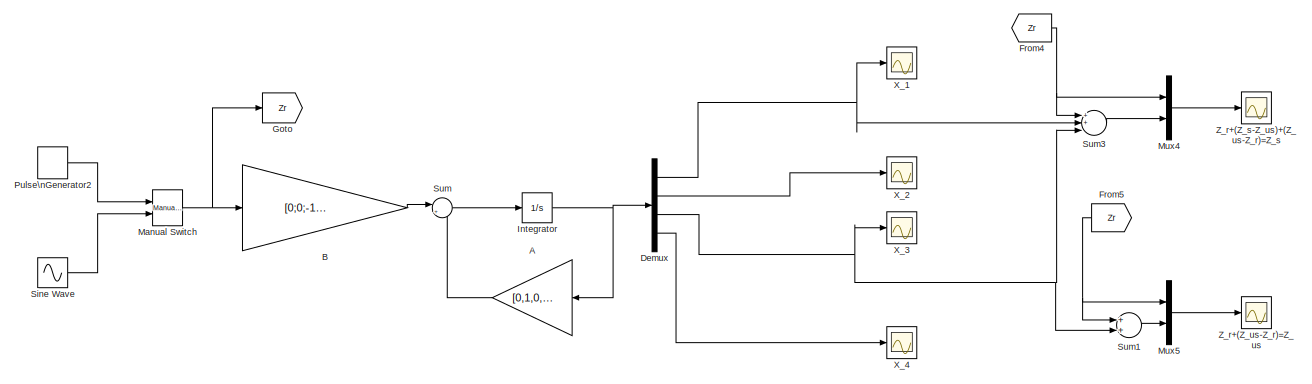
[diagram: root canvas - part 1/2, full width, top band]
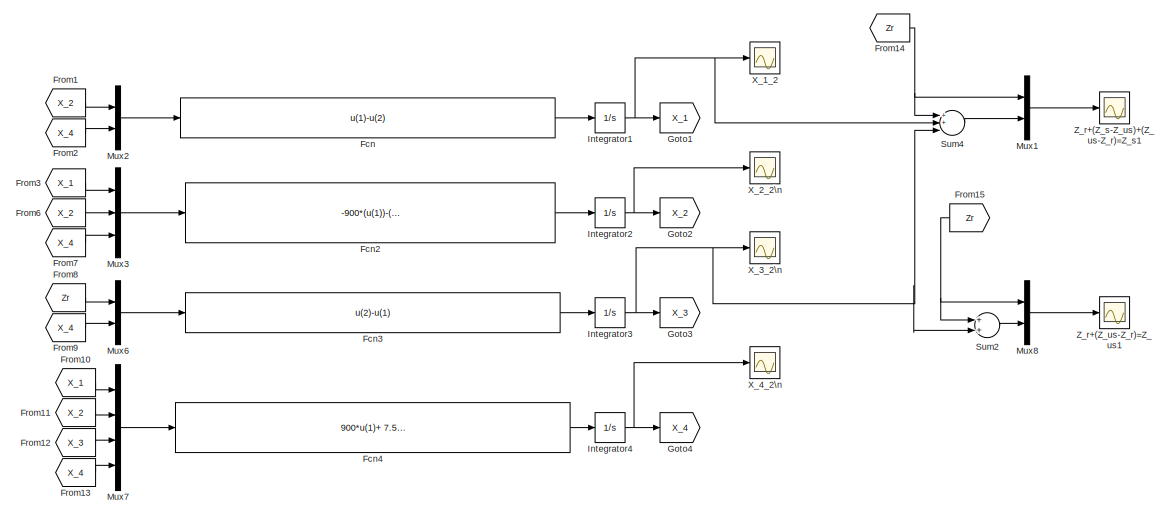
[diagram: root canvas - part 2/2, full width, bottom band]
MODEL Suspensao_Passiva
KIND model
BLOCK [Gain] A
  Gain = [0,1,0,-1;-367.3469,-3.061224489795918,0,3.061224489795918;0,0,0,1;900,7.500,-2500,-7.500]
  Multiplication = Matrix(K*u) (u vector)
  OutDataTypeStr = Inherit: Inherit via internal rule
  ParamDataTypeStr = Inherit: Inherit via internal rule
  SID = 6
  SaturateOnIntegerOverflow = off
BLOCK [Gain] B
  Gain = [0;0;-1;0]
  Multiplication = Matrix(K*u)
  OutDataTypeStr = Inherit: Inherit via internal rule
  ParamDataTypeStr = Inherit: Inherit via internal rule
  SID = 3
  SaturateOnIntegerOverflow = off
BLOCK [Demux] Demux
  DisplayOption = bar
  Ports = [1, 4]
  SID = 18
BLOCK [Fcn] Fcn
  Expr = u(1)-u(2)
  SID = 41
BLOCK [Fcn] Fcn2
  Expr = -900*(u(1))-(u(2)-u(3))*3.061224489795918
  SID = 50
BLOCK [Fcn] Fcn3
  Expr = u(2)-u(1)
  SID = 51
BLOCK [Fcn] Fcn4
  Expr = 900*u(1)+ 7.50*(u(2)-u(4))-2500*u(3)
  SID = 52
BLOCK [From] From1
  GotoTag = X_2
  SID = 58
BLOCK [From] From10
  GotoTag = X_1
  SID = 65
BLOCK [From] From11
  GotoTag = X_2
  SID = 66
BLOCK [From] From12
  GotoTag = X_3
  SID = 67
BLOCK [From] From13
  GotoTag = X_4
  SID = 68
BLOCK [From] From14
  GotoTag = Zr
  SID = 76
BLOCK [From] From15
  GotoTag = Zr
  SID = 77
BLOCK [From] From2
  GotoTag = X_4
  SID = 59
BLOCK [From] From3
  GotoTag = X_1
  SID = 60
BLOCK [From] From4
  GotoTag = Zr
  SID = 31
BLOCK [From] From5
  GotoTag = Zr
  SID = 33
BLOCK [From] From6
  GotoTag = X_2
  SID = 61
BLOCK [From] From7
  GotoTag = X_4
  SID = 62
BLOCK [From] From8
  GotoTag = Zr
  SID = 63
BLOCK [From] From9
  GotoTag = X_4
  SID = 64
BLOCK [Goto] Goto
  GotoTag = Zr
  SID = 11
  TagVisibility = local
BLOCK [Goto] Goto1
  GotoTag = X_1
  SID = 45
  TagVisibility = local
BLOCK [Goto] Goto2
  GotoTag = X_2
  SID = 46
  TagVisibility = local
BLOCK [Goto] Goto3
  GotoTag = X_3
  SID = 47
  TagVisibility = local
BLOCK [Goto] Goto4
  GotoTag = X_4
  SID = 48
  TagVisibility = local
BLOCK [Integrator] Integrator
  Ports = [1, 1]
  SID = 1
BLOCK [Integrator] Integrator1
  Ports = [1, 1]
  SID = 43
BLOCK [Integrator] Integrator2
  Ports = [1, 1]
  SID = 69
BLOCK [Integrator] Integrator3
  Ports = [1, 1]
  SID = 70
BLOCK [Integrator] Integrator4
  Ports = [1, 1]
  SID = 71
BLOCK [Reference] Manual Switch  REF=simulink/Signal\nRouting/Manual Switch
  FunctionWithSeparateData = off
  GeneratePreprocessorConditionals = off
  Ports = [2, 1]
  RTWMemSecDataConstants = Inherit from model
  RTWMemSecDataInternal = Inherit from model
  RTWMemSecDataParameters = Inherit from model
  RTWMemSecFuncExecute = Inherit from model
  RTWMemSecFuncInitTerm = Inherit from model
  SID = 84
  ShowPortLabels = FromPortIcon
  SourceBlock = simulink/Signal\nRouting/Manual Switch
  SourceType = Manual Switch
  SystemSampleTime = -1
  action = 0
  sw = 1
  varsize = off
BLOCK [Mux] Mux1
  DisplayOption = bar
  Inputs = 2
  Ports = [2, 1]
  SID = 78
BLOCK [Mux] Mux2
  DisplayOption = bar
  Inputs = 2
  Ports = [2, 1]
  SID = 53
BLOCK [Mux] Mux3
  DisplayOption = bar
  Inputs = 3
  Ports = [3, 1]
  SID = 54
BLOCK [Mux] Mux4
  DisplayOption = bar
  Inputs = 2
  Ports = [2, 1]
  SID = 35
BLOCK [Mux] Mux5
  DisplayOption = bar
  Inputs = 2
  Ports = [2, 1]
  SID = 36
BLOCK [Mux] Mux6
  DisplayOption = bar
  Inputs = 2
  Ports = [2, 1]
  SID = 55
BLOCK [Mux] Mux7
  DisplayOption = bar
  Ports = [4, 1]
  SID = 57
BLOCK [Mux] Mux8
  DisplayOption = bar
  Inputs = 2
  Ports = [2, 1]
  SID = 79
BLOCK [DiscretePulseGenerator] Pulse\nGenerator2
  Amplitude = 0.02
  Period = 3
  PhaseDelay = .1
  Ports = [0, 1]
  PulseType = Time based
  PulseWidth = 50
  SID = 38
BLOCK [Sin] Sine Wave
  Amplitude = 0.02
  Frequency = pi/0.3
  Ports = [0, 1]
  SID = 39
  SampleTime = 0
BLOCK [Sum] Sum
  IconShape = round
  InputSameDT = off
  Inputs = |++
  OutDataTypeStr = Inherit: Inherit via internal rule
  Ports = [2, 1]
  SID = 2
  SaturateOnIntegerOverflow = off
BLOCK [Sum] Sum1
  Inputs = 2
  Ports = [2, 1]
  SID = 30
BLOCK [Sum] Sum2
  Inputs = 2
  Ports = [2, 1]
  SID = 80
BLOCK [Sum] Sum3
  Inputs = 3
  Ports = [3, 1]
  SID = 28
BLOCK [Sum] Sum4
  Inputs = 3
  Ports = [3, 1]
  SID = 81
BLOCK [Scope] X_1
  DataFormat = Array
  Floating = off
  NumInputPorts = 1
  Ports = [1]
  SID = 7
  SampleTime = 0
  SaveName = x
  SaveToWorkspace = on
BLOCK [Scope] X_1_2
  DataFormat = Array
  Floating = off
  NumInputPorts = 1
  Ports = [1]
  SID = 72
  SampleTime = 0
  SaveName = x6
  SaveToWorkspace = on
BLOCK [Scope] X_2
  DataFormat = Array
  Floating = off
  NumInputPorts = 1
  Ports = [1]
  SID = 13
  SampleTime = 0
  SaveName = x1
  SaveToWorkspace = on
BLOCK [Scope] X_2_2\n
  DataFormat = Array
  Floating = off
  NumInputPorts = 1
  Ports = [1]
  SID = 73
  SampleTime = 0
  SaveName = x7
  SaveToWorkspace = on
BLOCK [Scope] X_3
  DataFormat = Array
  Floating = off
  NumInputPorts = 1
  Ports = [1]
  SID = 15
  SampleTime = 0
  SaveName = x2
  SaveToWorkspace = on
BLOCK [Scope] X_3_2\n
  DataFormat = Array
  Floating = off
  NumInputPorts = 1
  Ports = [1]
  SID = 74
  SampleTime = 0
  SaveName = x8
  SaveToWorkspace = on
BLOCK [Scope] X_4
  DataFormat = Array
  Floating = off
  NumInputPorts = 1
  Ports = [1]
  SID = 17
  SampleTime = 0
  SaveName = x3
  SaveToWorkspace = on
BLOCK [Scope] X_4_2\n
  DataFormat = Array
  Floating = off
  NumInputPorts = 1
  Ports = [1]
  SID = 75
  SampleTime = 0
  SaveName = x9
  SaveToWorkspace = on
BLOCK [Scope] Z_r+(Z_s-Z_us)+(Z_us-Z_r)=Z_s
  DataFormat = Array
  Floating = off
  NumInputPorts = 1
  Ports = [1]
  SID = 32
  SampleTime = 0
  SaveName = x4
  SaveToWorkspace = on
BLOCK [Scope] Z_r+(Z_s-Z_us)+(Z_us-Z_r)=Z_s1
  DataFormat = Array
  Floating = off
  NumInputPorts = 1
  Ports = [1]
  SID = 82
  SampleTime = 0
  SaveName = x10
  SaveToWorkspace = on
BLOCK [Scope] Z_r+(Z_us-Z_r)=Z_us
  DataFormat = Array
  Floating = off
  NumInputPorts = 1
  Ports = [1]
  SID = 34
  SampleTime = 0
  SaveName = x5
  SaveToWorkspace = on
BLOCK [Scope] Z_r+(Z_us-Z_r)=Z_us1
  DataFormat = Array
  Floating = off
  NumInputPorts = 1
  Ports = [1]
  SID = 83
  SampleTime = 0
  SaveName = x11
  SaveToWorkspace = on
LINE A:1 -> Sum:2
LINE B:1 -> Sum:1
NET Demux:1 -> Sum3:2, X_1:1
LINE Demux:2 -> X_2:1
NET Demux:3 -> Sum1:2, Sum3:3, X_3:1
LINE Demux:4 -> X_4:1
LINE Fcn2:1 -> Integrator2:1
LINE Fcn3:1 -> Integrator3:1
LINE Fcn4:1 -> Integrator4:1
LINE Fcn:1 -> Integrator1:1
LINE From10:1 -> Mux7:1
LINE From11:1 -> Mux7:2
LINE From12:1 -> Mux7:3
LINE From13:1 -> Mux7:4
NET From14:1 -> Mux1:1, Sum4:1
NET From15:1 -> Mux8:1, Sum2:1
LINE From1:1 -> Mux2:1
LINE From2:1 -> Mux2:2
LINE From3:1 -> Mux3:1
NET From4:1 -> Mux4:1, Sum3:1
NET From5:1 -> Mux5:1, Sum1:1
LINE From6:1 -> Mux3:2
LINE From7:1 -> Mux3:3
LINE From8:1 -> Mux6:1
LINE From9:1 -> Mux6:2
NET Integrator1:1 -> Goto1:1, Sum4:2, X_1_2:1
NET Integrator2:1 -> Goto2:1, X_2_2\n:1
NET Integrator3:1 -> Goto3:1, Sum2:2, Sum4:3, X_3_2\n:1
NET Integrator4:1 -> Goto4:1, X_4_2\n:1
NET Integrator:1 -> A:1, Demux:1
NET Manual Switch:1 -> B:1, Goto:1
LINE Mux1:1 -> Z_r+(Z_s-Z_us)+(Z_us-Z_r)=Z_s1:1
LINE Mux2:1 -> Fcn:1
LINE Mux3:1 -> Fcn2:1
LINE Mux4:1 -> Z_r+(Z_s-Z_us)+(Z_us-Z_r)=Z_s:1
LINE Mux5:1 -> Z_r+(Z_us-Z_r)=Z_us:1
LINE Mux6:1 -> Fcn3:1
LINE Mux7:1 -> Fcn4:1
LINE Mux8:1 -> Z_r+(Z_us-Z_r)=Z_us1:1
LINE Pulse\nGenerator2:1 -> Manual Switch:1
LINE Sine Wave:1 -> Manual Switch:2
LINE Sum1:1 -> Mux5:2
LINE Sum2:1 -> Mux8:2
LINE Sum3:1 -> Mux4:2
LINE Sum4:1 -> Mux1:2
LINE Sum:1 -> Integrator:1
note: NET lines group one-source signal fan-out (src -> all destinations, sorted); 1:1 wires keep LINE
